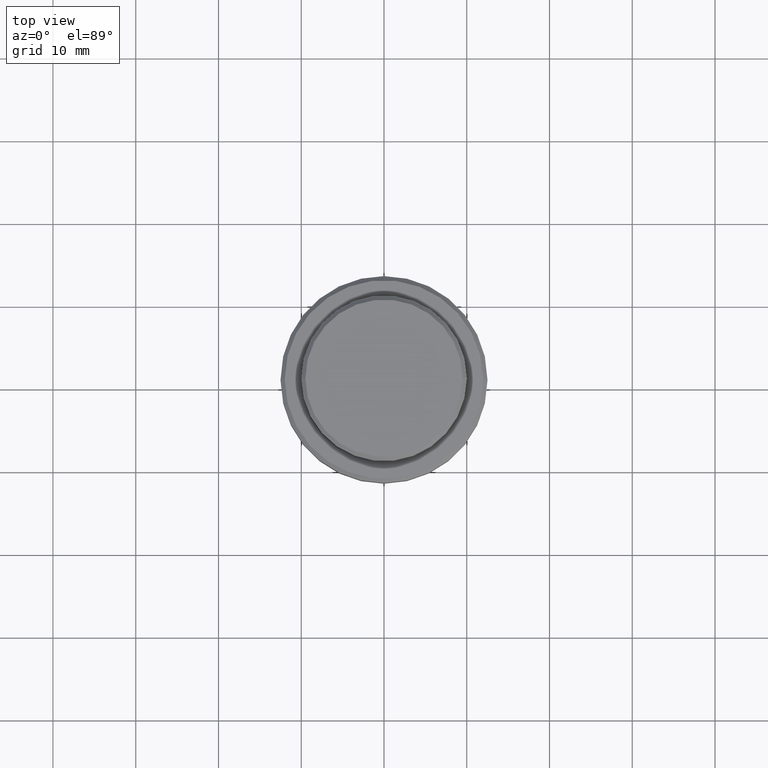
[diagram: clean part render]
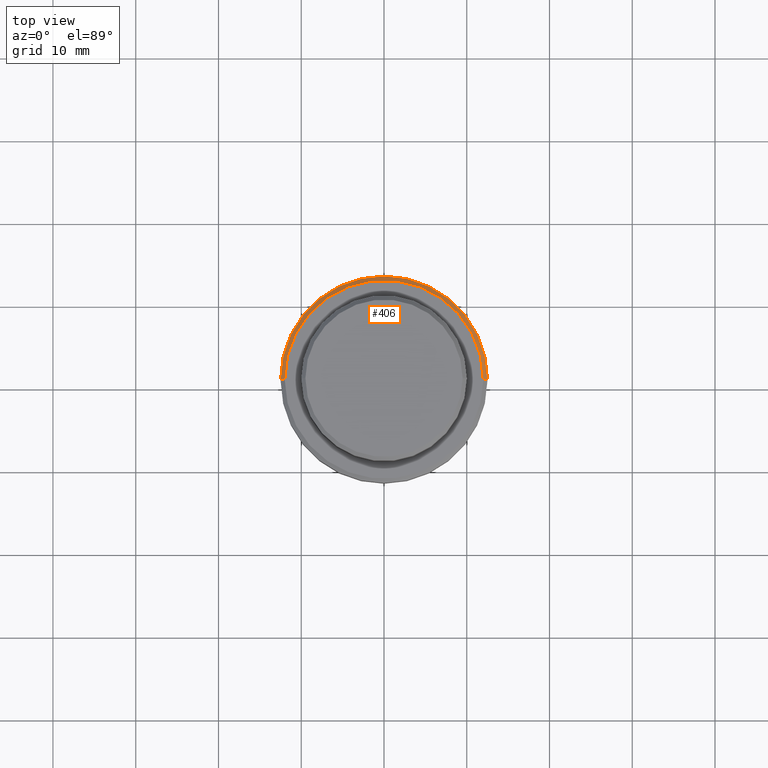
[diagram: same view with one face highlighted and labeled with its STEP entity id]
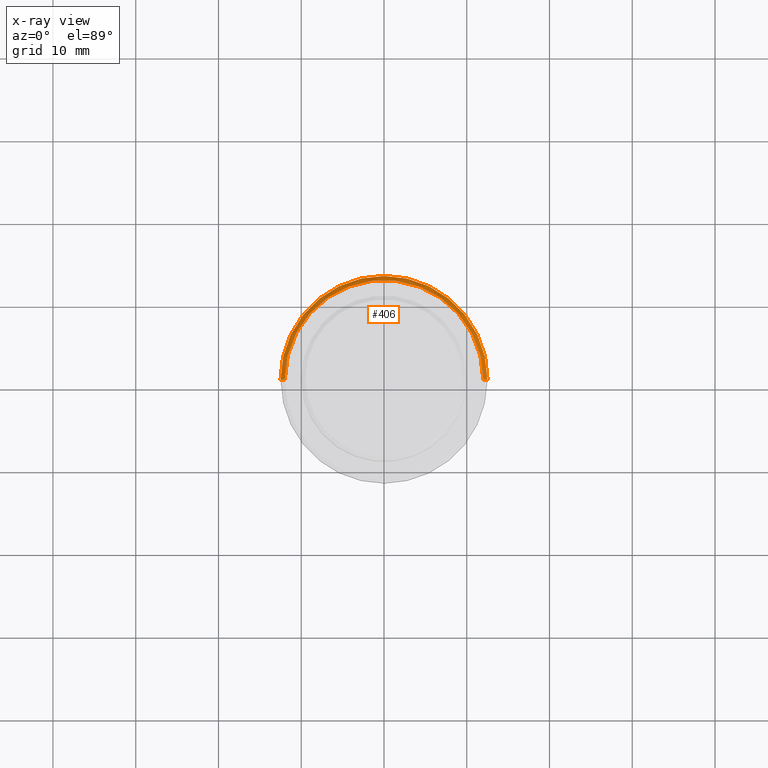
[diagram: x-ray of the same camera — body ghosted, the highlighted face saturated]
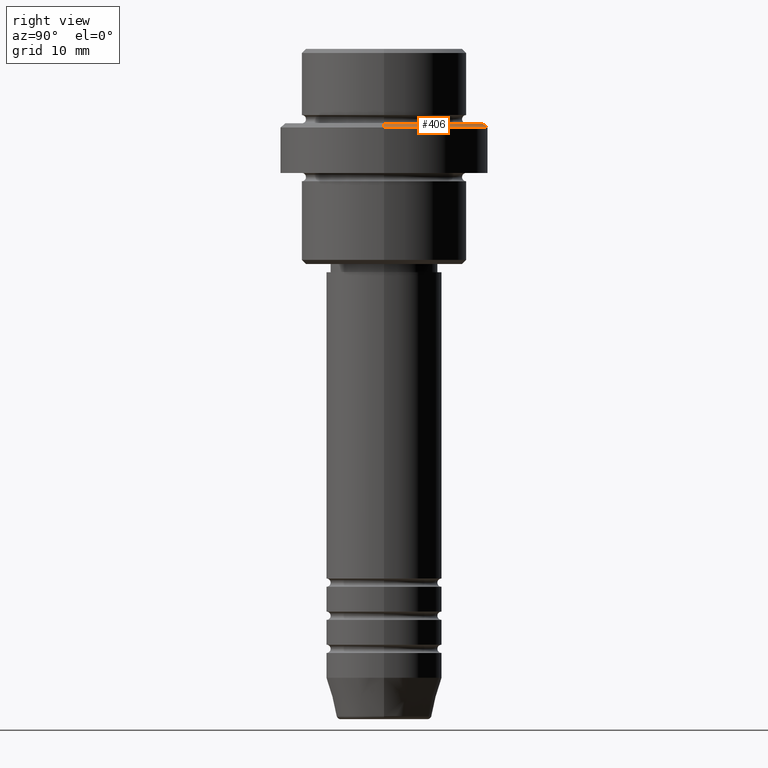
[diagram: same view with one face highlighted and labeled with its STEP entity id]
A machine part, top view. The second image highlights one B-rep face of the part: STEP entity #406.
The next image is the same camera in x-ray: the body ghosted, the highlighted face saturated — about 0% of this face is hidden behind the body in this view.
A second angle (right view) of the same face is appended — the face is thin or edge-on in the first view.
In plain terms, the highlighted conical surface has half-angle 45 deg.
Its self-contained STEP definition (entity closure, byte-faithful):
#34 = DIRECTION ( 'NONE',  ( 1.000000000000000000, 0.000000000000000000, 0.000000000000000000 ) ) ;
#49 = AXIS2_PLACEMENT_3D ( 'NONE', #361, #912, #1113 ) ;
#65 = LINE ( 'NONE', #1377, #266 ) ;
#96 = CONICAL_SURFACE ( 'NONE', #766, 12.00000000000002487, 0.7853981633974327359 ) ;
#104 = VERTEX_POINT ( 'NONE', #257 ) ;
#132 = EDGE_CURVE ( 'NONE', #321, #104, #354, .T. ) ;
#148 = CARTESIAN_POINT ( 'NONE',  ( 0.000000000000000000, 0.000000000000000000, -9.000000000000001776 ) ) ;
#187 = CARTESIAN_POINT ( 'NONE',  ( 12.00000000000002487, 1.500192328955509115E-15, -9.000000000000001776 ) ) ;
#226 = DIRECTION ( 'NONE',  ( 0.000000000000000000, 0.000000000000000000, -1.000000000000000000 ) ) ;
#257 = CARTESIAN_POINT ( 'NONE',  ( -12.00000000000002487, 0.000000000000000000, -9.000000000000001776 ) ) ;
#261 = EDGE_CURVE ( 'NONE', #321, #940, #65, .T. ) ;
#266 = VECTOR ( 'NONE', #1065, 1000.000000000000114 ) ;
#321 = VERTEX_POINT ( 'NONE', #187 ) ;
#354 = CIRCLE ( 'NONE', #930, 12.00000000000002487 ) ;
#361 = CARTESIAN_POINT ( 'NONE',  ( 0.000000000000000000, 0.000000000000000000, -9.499999999999992895 ) ) ;
#363 = ORIENTED_EDGE ( 'NONE', *, *, #1396, .F. ) ;
#378 = CARTESIAN_POINT ( 'NONE',  ( -12.50000000000000000, 1.530808498934191521E-15, -9.499999999999992895 ) ) ;
#393 = DIRECTION ( 'NONE',  ( -0.7071067811865364705, 0.000000000000000000, -0.7071067811865584529 ) ) ;
#406 = ADVANCED_FACE ( 'NONE', ( #540 ), #96, .T. ) ;
#413 = CARTESIAN_POINT ( 'NONE',  ( -12.00000000000002487, 0.000000000000000000, -9.000000000000001776 ) ) ;
#470 = CARTESIAN_POINT ( 'NONE',  ( 12.50000000000000000, 0.000000000000000000, -9.499999999999992895 ) ) ;
#540 = FACE_OUTER_BOUND ( 'NONE', #1162, .T. ) ;
#574 = DIRECTION ( 'NONE',  ( -0.000000000000000000, -0.000000000000000000, 1.000000000000000000 ) ) ;
#662 = DIRECTION ( 'NONE',  ( -1.000000000000000000, 0.000000000000000000, 0.000000000000000000 ) ) ;
#671 = EDGE_CURVE ( 'NONE', #104, #997, #962, .T. ) ;
#678 = ORIENTED_EDGE ( 'NONE', *, *, #671, .F. ) ;
#766 = AXIS2_PLACEMENT_3D ( 'NONE', #887, #226, #662 ) ;
#806 = ORIENTED_EDGE ( 'NONE', *, *, #261, .T. ) ;
#887 = CARTESIAN_POINT ( 'NONE',  ( 0.000000000000000000, 0.000000000000000000, -9.000000000000001776 ) ) ;
#912 = DIRECTION ( 'NONE',  ( 0.000000000000000000, 0.000000000000000000, -1.000000000000000000 ) ) ;
#930 = AXIS2_PLACEMENT_3D ( 'NONE', #148, #574, #34 ) ;
#940 = VERTEX_POINT ( 'NONE', #470 ) ;
#951 = CIRCLE ( 'NONE', #49, 12.50000000000000000 ) ;
#962 = LINE ( 'NONE', #413, #1104 ) ;
#997 = VERTEX_POINT ( 'NONE', #378 ) ;
#1065 = DIRECTION ( 'NONE',  ( 0.7071067811865364705, 8.659560562354797273E-17, -0.7071067811865584529 ) ) ;
#1104 = VECTOR ( 'NONE', #393, 1000.000000000000114 ) ;
#1113 = DIRECTION ( 'NONE',  ( 1.000000000000000000, 0.000000000000000000, 0.000000000000000000 ) ) ;
#1162 = EDGE_LOOP ( 'NONE', ( #1261, #806, #363, #678 ) ) ;
#1261 = ORIENTED_EDGE ( 'NONE', *, *, #132, .F. ) ;
#1377 = CARTESIAN_POINT ( 'NONE',  ( 12.00000000000002487, 1.469576158976826708E-15, -9.000000000000001776 ) ) ;
#1396 = EDGE_CURVE ( 'NONE', #997, #940, #951, .T. ) ;